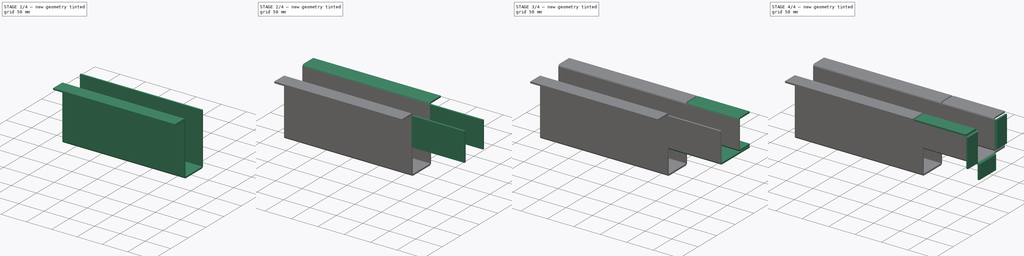
[diagram: build sequence overview — one tinted view per stage of 4, left to right]
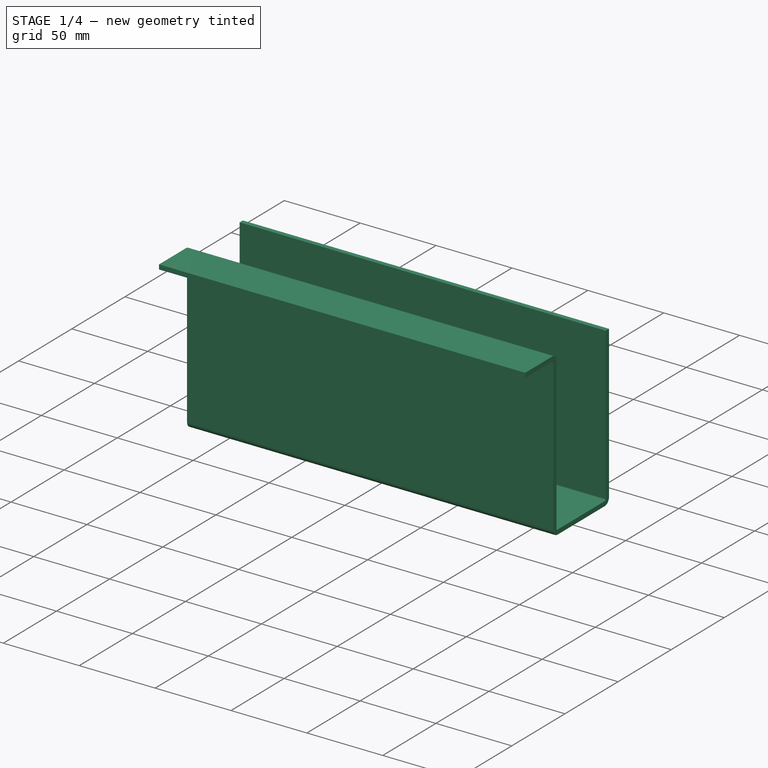
[diagram: stage 1 of 4 — iso view after this stage's code; geometry added in this stage tinted green]
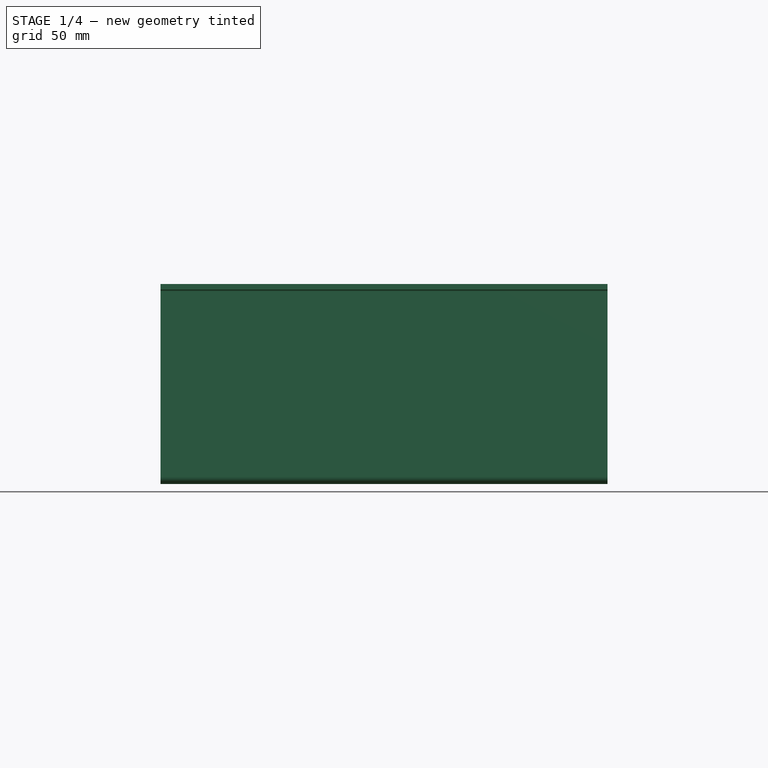
[diagram: stage 1 of 4 — front view after this stage's code; geometry added in this stage tinted green]
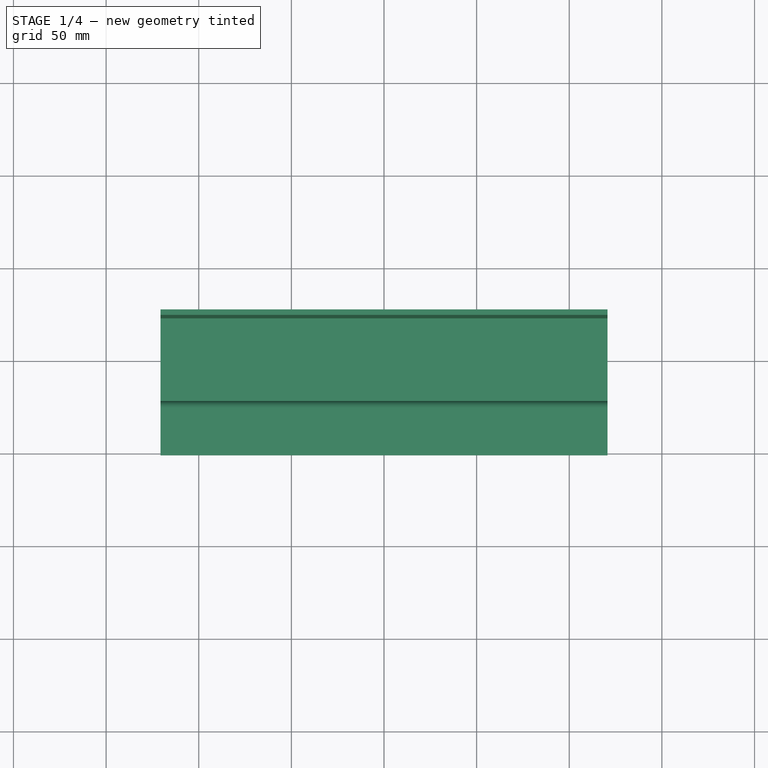
[diagram: stage 1 of 4 — top view after this stage's code; geometry added in this stage tinted green]
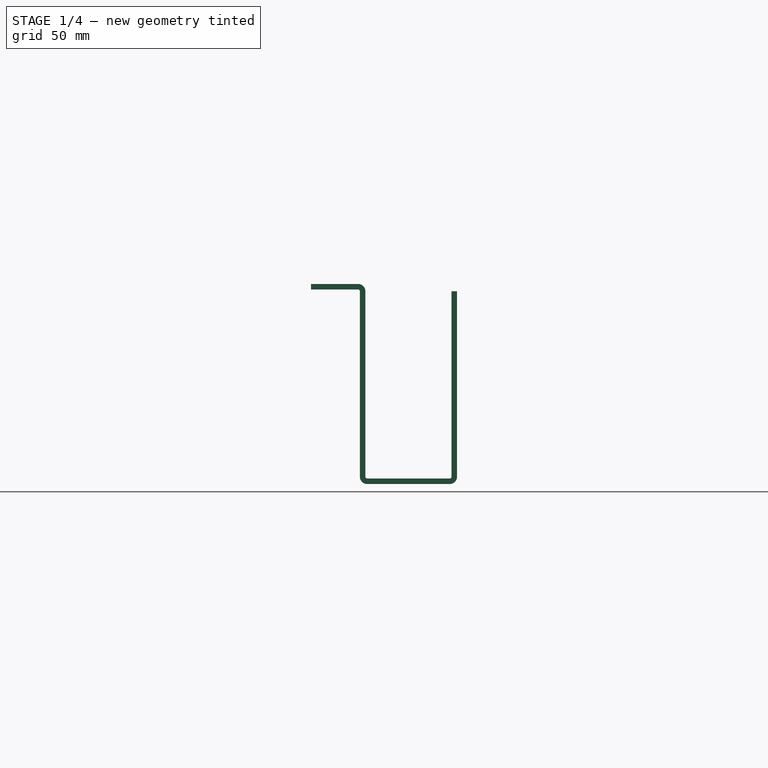
[diagram: stage 1 of 4 — right view after this stage's code; geometry added in this stage tinted green]
FCSTD DOCUMENT  (FreeCAD 0.18R4 (GitTag))
Label: top hat2
License: All rights reserved
LicenseURL: http://en.wikipedia.org/wiki/All_rights_reserved
objects: PartDesign::FeaturePython×13, Sketcher::SketchObject×4, PartDesign::Pad×1, PartDesign::Body×1, App::Part×1, Part::Feature×1
note: 21 computed .brp shape members not serialized (recipe doc carries the construction recipe); baked Part::Feature solids carry a one-line shape summary decoded from their .brp

FEATURE [Sketcher::SketchObject] Sketch
  MapMode = 5
  Support = -> [XY_Plane001]
  sketch-geometry (4):
    g0: LineSegment StartX=-120.65 StartY=22.225 StartZ=0 EndX=120.65 EndY=22.225 EndZ=0
    g1: LineSegment StartX=120.65 StartY=22.225 StartZ=0 EndX=120.65 EndY=-22.225 EndZ=0
    g2: LineSegment StartX=120.65 StartY=-22.225 StartZ=0 EndX=-120.65 EndY=-22.225 EndZ=0
    g3: LineSegment StartX=-120.65 StartY=-22.225 StartZ=0 EndX=-120.65 EndY=22.225 EndZ=0
  constraints (12):
    c: Coincident(g0,g1)
    c: Coincident(g1,g2)
    c: Coincident(g2,g3)
    c: Coincident(g3,g0)
    c: Horizontal(g0)
    c: Horizontal(g2)
    c: Vertical(g1)
    c: Vertical(g3)
    c: DistanceX(g0,g0) = 241.3
    c: DistanceY(g3,g3) = 44.45
    c: DistanceY(g0,g-1) = -22.225
    c: DistanceX(g-1,g0) = -120.65
FEATURE [PartDesign::Pad] Pad
  Length = 3
  Length2 = 100
  Profile = -> Sketch
  Type = 0
FEATURE [PartDesign::FeaturePython] Bend  label="LHS"  # WARN: FeaturePython — macro-defined, semantics opaque (R4)
  AutoMiter = true
  BaseFeature = -> Pad
  BendType = 0
  LengthList = [100.012]
  ReliefFactor = 0.7
  UseReliefFactor = false
  angle = 90
  baseObject = -> Pad [Face3]
  bendAList = [90]
  extend1 = 0
  extend2 = 0
  gap1 = 0
  gap2 = 0
  invert = false
  kfactor = 0.5
  length = 100.012
  miterangle1 = 0
  miterangle2 = 0
  offset = 0
  radius = 1
  reliefType = 0
  reliefd = 1
  reliefw = 0.8
  sketchflip = false
  sketchinvert = false
  unfold = false
FEATURE [PartDesign::FeaturePython] Bend001  label="LHS top flange"  # WARN: FeaturePython — macro-defined, semantics opaque (R4)
  AutoMiter = true
  BaseFeature = -> Bend
  BendType = 0
  LengthList = [25.4]
  ReliefFactor = 0.7
  UseReliefFactor = false
  angle = -90
  baseObject = -> Bend [Face3]
  bendAList = [-90]
  extend1 = 0
  extend2 = 0
  gap1 = 0
  gap2 = 0
  invert = false
  kfactor = 0.5
  length = 25.4
  miterangle1 = 0
  miterangle2 = 0
  offset = 0
  radius = 1
  reliefType = 0
  reliefd = 1
  reliefw = 0.8
  sketchflip = false
  sketchinvert = false
  unfold = false
FEATURE [PartDesign::FeaturePython] Bend002  label="RHS"  # WARN: FeaturePython — macro-defined, semantics opaque (R4)
  AutoMiter = true
  BaseFeature = -> Bend001
  BendType = 0
  LengthList = [100.1]
  ReliefFactor = 0.7
  UseReliefFactor = false
  angle = 90
  baseObject = -> Bend001 [Face21]
  bendAList = [90]
  extend1 = 0
  extend2 = 0
  gap1 = 0
  gap2 = 0
  invert = false
  kfactor = 0.5
  length = 100.1
  miterangle1 = 0
  miterangle2 = 0
  offset = 0
  radius = 1
  reliefType = 0
  reliefd = 1
  reliefw = 0.8
  sketchflip = false
  sketchinvert = false
  unfold = false
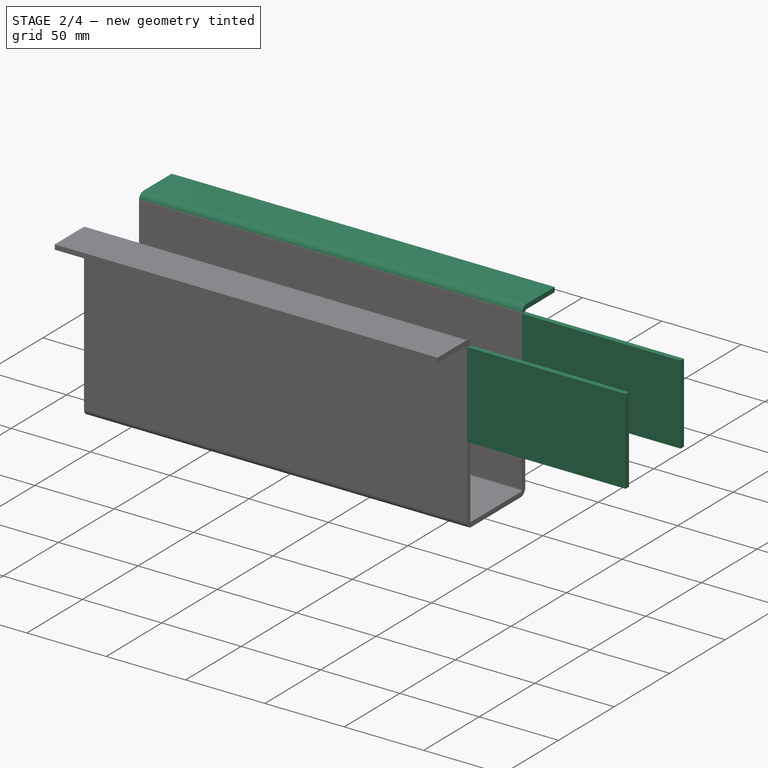
[diagram: stage 2 of 4 — iso view after this stage's code; geometry added in this stage tinted green]
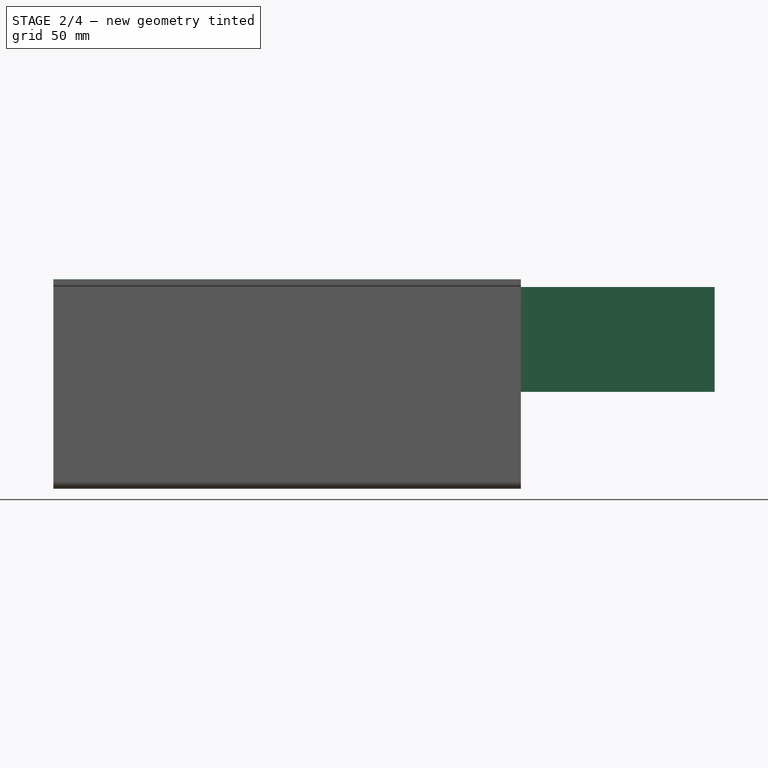
[diagram: stage 2 of 4 — front view after this stage's code; geometry added in this stage tinted green]
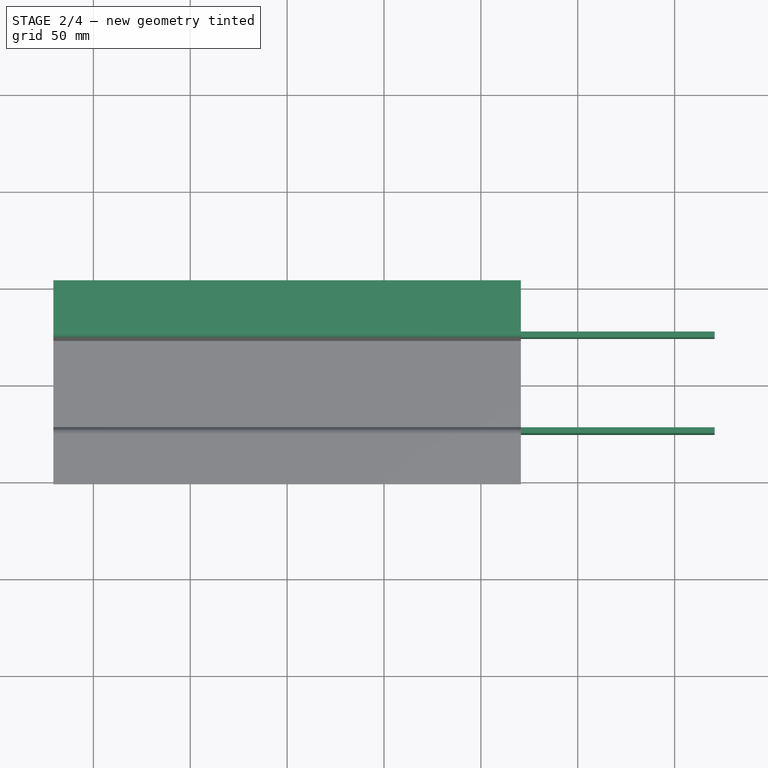
[diagram: stage 2 of 4 — top view after this stage's code; geometry added in this stage tinted green]
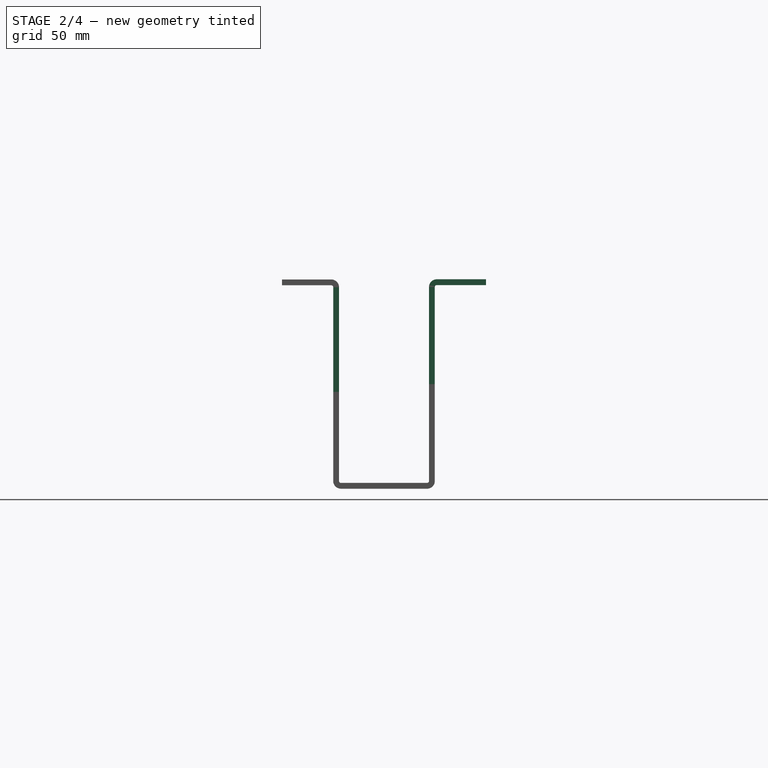
[diagram: stage 2 of 4 — right view after this stage's code; geometry added in this stage tinted green]
FEATURE [PartDesign::FeaturePython] Bend003  label="RHS top flange"  # WARN: FeaturePython — macro-defined, semantics opaque (R4)
  AutoMiter = true
  BaseFeature = -> Bend002
  BendType = 0
  LengthList = [25.4]
  ReliefFactor = 0.7
  UseReliefFactor = false
  angle = -90
  baseObject = -> Bend002 [Face3]
  bendAList = [-90]
  extend1 = 0
  extend2 = 0
  gap1 = 0
  gap2 = 0
  invert = false
  kfactor = 0.5
  length = 25.4
  miterangle1 = 0
  miterangle2 = 0
  offset = 0
  radius = 1
  reliefType = 0
  reliefd = 1
  reliefw = 0.8
  sketchflip = false
  sketchinvert = false
  unfold = false
FEATURE [PartDesign::FeaturePython] Extend  label="RHS extend"  # WARN: FeaturePython — macro-defined, semantics opaque (R4)
  BaseFeature = -> Bend003
  baseObject = -> Bend003 [Face14]
  gap1 = 0
  gap2 = 50
  length = 100
FEATURE [PartDesign::FeaturePython] Extend001  label="LHS extend"  # WARN: FeaturePython — macro-defined, semantics opaque (R4)
  BaseFeature = -> Extend
  baseObject = -> Extend [Face33]
  gap1 = 46
  gap2 = 0
  length = 100
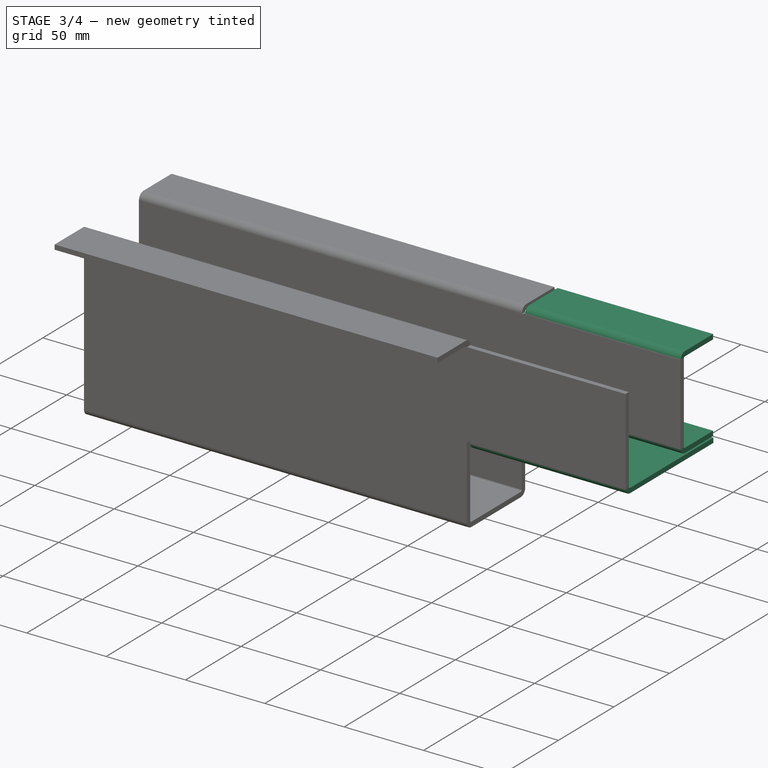
[diagram: stage 3 of 4 — iso view after this stage's code; geometry added in this stage tinted green]
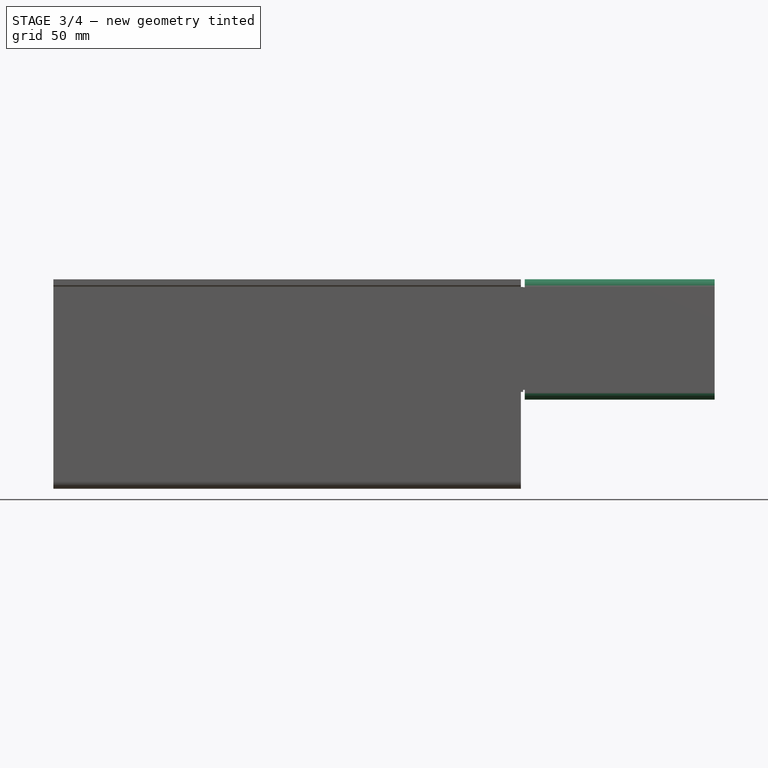
[diagram: stage 3 of 4 — front view after this stage's code; geometry added in this stage tinted green]
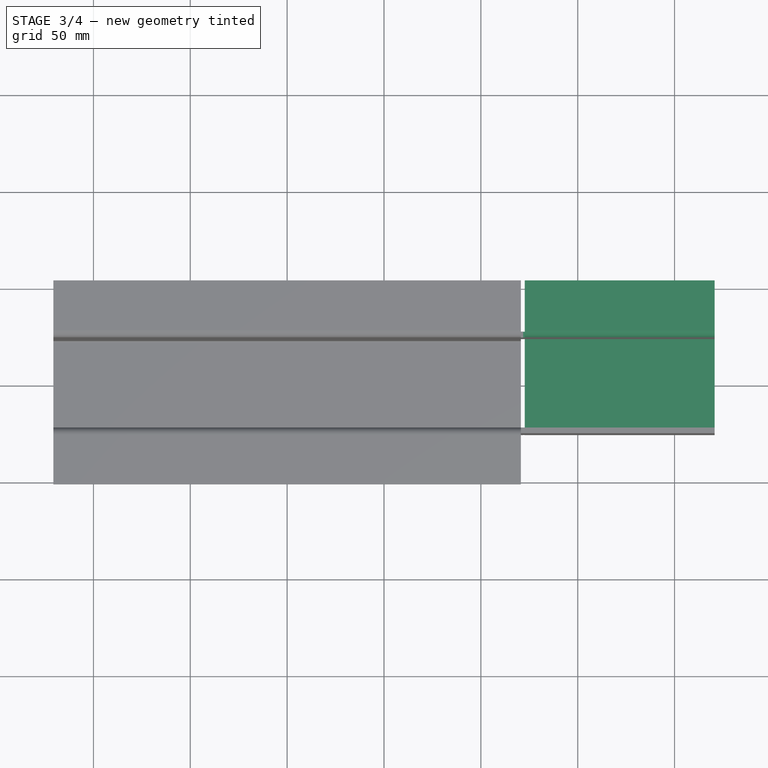
[diagram: stage 3 of 4 — top view after this stage's code; geometry added in this stage tinted green]
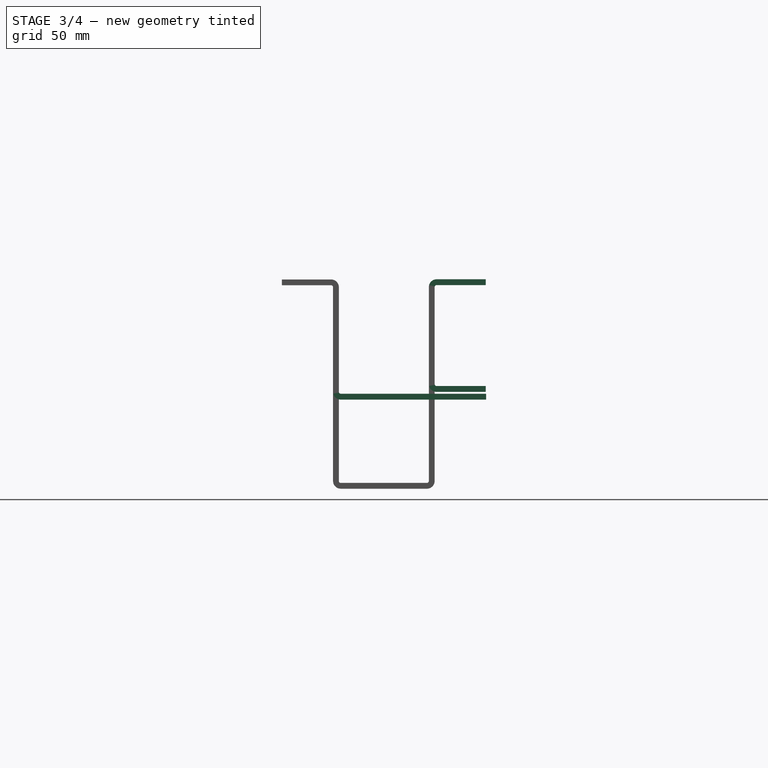
[diagram: stage 3 of 4 — right view after this stage's code; geometry added in this stage tinted green]
FEATURE [PartDesign::FeaturePython] Bend004  label="RHS extend bottom flange"  # WARN: FeaturePython — macro-defined, semantics opaque (R4)
  AutoMiter = true
  BaseFeature = -> Extend001
  BendType = 0
  LengthList = [25.4]
  ReliefFactor = 0.7
  UseReliefFactor = false
  angle = -90
  baseObject = -> Extend001 [Face34]
  bendAList = [-90]
  extend1 = 0
  extend2 = 0
  gap1 = 0
  gap2 = 2
  invert = false
  kfactor = 0.5
  length = 25.4
  miterangle1 = 0
  miterangle2 = 0
  offset = 0
  radius = 1
  reliefType = 0
  reliefd = 1
  reliefw = 0.8
  sketchflip = false
  sketchinvert = false
  unfold = false
FEATURE [PartDesign::FeaturePython] Bend005  label="RHS extend top flange"  # WARN: FeaturePython — macro-defined, semantics opaque (R4)
  AutoMiter = true
  BaseFeature = -> Bend004
  BendType = 0
  LengthList = [25.4]
  ReliefFactor = 0.7
  UseReliefFactor = false
  angle = -90
  baseObject = -> Bend004 [Face13]
  bendAList = [-90]
  extend1 = 0
  extend2 = 0
  gap1 = 2
  gap2 = 0
  invert = false
  kfactor = 0.5
  length = 25.4
  miterangle1 = 0
  miterangle2 = 0
  offset = 0
  radius = 1
  reliefType = 0
  reliefd = 1
  reliefw = 0.8
  sketchflip = false
  sketchinvert = false
  unfold = false
FEATURE [PartDesign::FeaturePython] Bend006  label="LHS extend bottom flange"  # WARN: FeaturePython — macro-defined, semantics opaque (R4)
  AutoMiter = true
  BaseFeature = -> Bend005
  BendType = 0
  LengthList = [75]
  ReliefFactor = 0.7
  UseReliefFactor = false
  angle = 90
  baseObject = -> Bend005 [Face63]
  bendAList = [90]
  extend1 = 0
  extend2 = 0
  gap1 = 2
  gap2 = 0
  invert = false
  kfactor = 0.5
  length = 75
  miterangle1 = 0
  miterangle2 = 0
  offset = 0
  radius = 1
  reliefType = 0
  reliefd = 1
  reliefw = 0.8
  sketchflip = false
  sketchinvert = false
  unfold = false
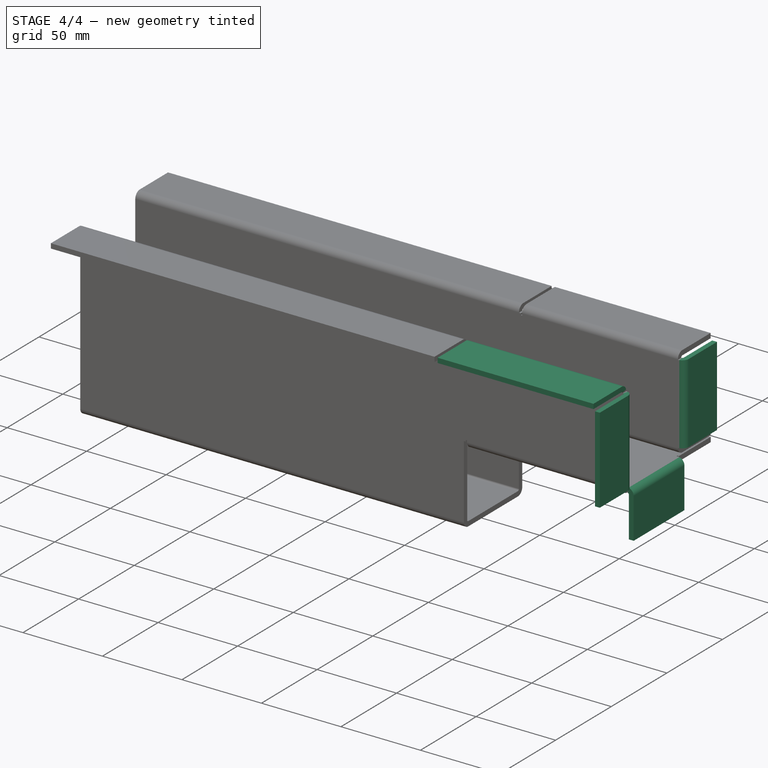
[diagram: stage 4 of 4 — iso view after this stage's code; geometry added in this stage tinted green]
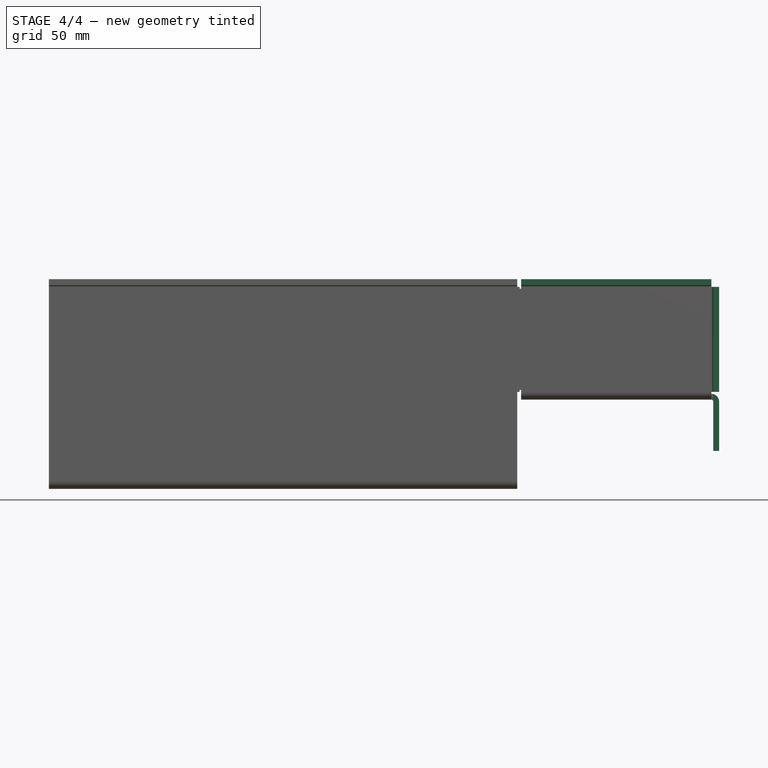
[diagram: stage 4 of 4 — front view after this stage's code; geometry added in this stage tinted green]
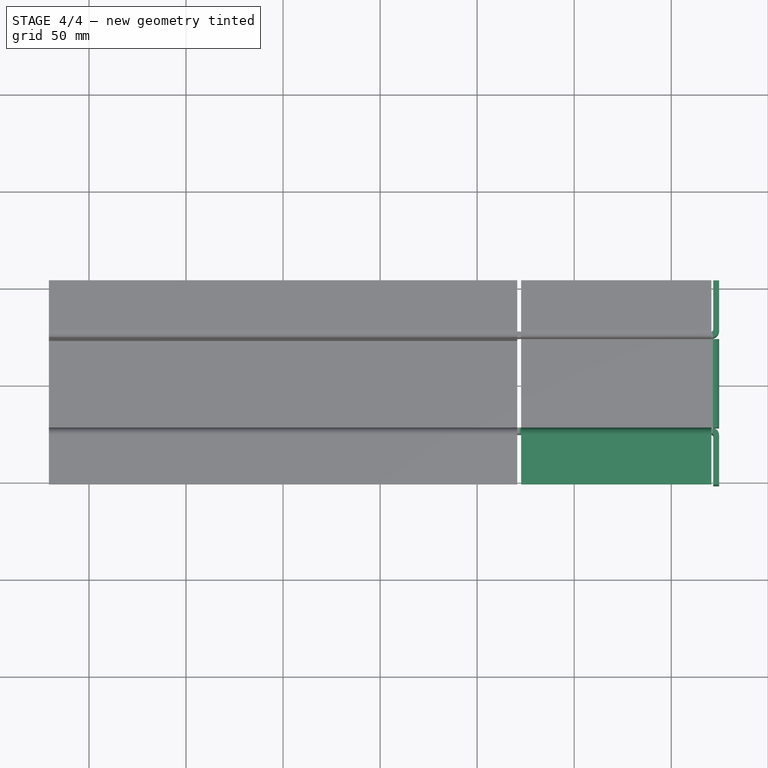
[diagram: stage 4 of 4 — top view after this stage's code; geometry added in this stage tinted green]
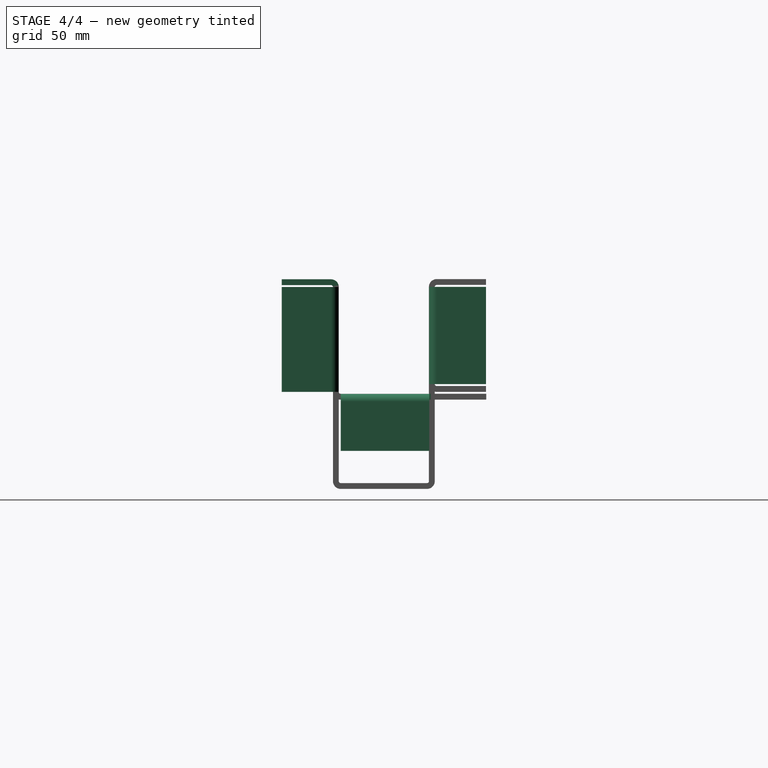
[diagram: stage 4 of 4 — right view after this stage's code; geometry added in this stage tinted green]
FEATURE [PartDesign::FeaturePython] Bend007  label="LHS extend top flange"  # WARN: FeaturePython — macro-defined, semantics opaque (R4)
  AutoMiter = true
  BaseFeature = -> Bend006
  BendType = 0
  LengthList = [25.4]
  ReliefFactor = 0.7
  UseReliefFactor = false
  angle = -90
  baseObject = -> Bend006 [Face16]
  bendAList = [-90]
  extend1 = 0
  extend2 = 0
  gap1 = 0
  gap2 = 2
  invert = false
  kfactor = 0.5
  length = 25.4
  miterangle1 = 0
  miterangle2 = 0
  offset = 0
  radius = 1
  reliefType = 0
  reliefd = 1
  reliefw = 0.8
  sketchflip = false
  sketchinvert = false
  unfold = false
FEATURE [PartDesign::FeaturePython] Bend008  label="LHS weld tab"  # WARN: FeaturePython — macro-defined, semantics opaque (R4)
  AutoMiter = true
  BaseFeature = -> Bend007
  BendType = 0
  LengthList = [25.4]
  ReliefFactor = 0.7
  UseReliefFactor = false
  angle = -90
  baseObject = -> Bend007 [Face8]
  bendAList = [-90]
  extend1 = 0
  extend2 = 0
  gap1 = 0
  gap2 = 0
  invert = false
  kfactor = 0.5
  length = 25.4
  miterangle1 = 0
  miterangle2 = 0
  offset = 0
  radius = 1
  reliefType = 0
  reliefd = 1
  reliefw = 0.8
  sketchflip = false
  sketchinvert = false
  unfold = false
FEATURE [PartDesign::FeaturePython] Bend009  label="RHS weld tab"  # WARN: FeaturePython — macro-defined, semantics opaque (R4)
  AutoMiter = true
  BaseFeature = -> Bend008
  BendType = 0
  LengthList = [25.4]
  ReliefFactor = 0.7
  UseReliefFactor = false
  angle = -90
  baseObject = -> Bend008 [Face79]
  bendAList = [-90]
  extend1 = 0
  extend2 = 0
  gap1 = 0
  gap2 = 0
  invert = false
  kfactor = 0.5
  length = 25.4
  miterangle1 = 0
  miterangle2 = 0
  offset = 0
  radius = 1
  reliefType = 0
  reliefd = 1
  reliefw = 0.8
  sketchflip = false
  sketchinvert = false
  unfold = false
FEATURE [PartDesign::FeaturePython] Bend010  label="bottom weld tab"  # WARN: FeaturePython — macro-defined, semantics opaque (R4)
  AutoMiter = true
  BaseFeature = -> Bend009
  BendType = 0
  LengthList = [25.4]
  ReliefFactor = 0.7
  UseReliefFactor = false
  angle = -90
  baseObject = -> Bend009 [Face110]
  bendAList = [-90]
  extend1 = 0
  extend2 = 0
  gap1 = 29.4
  gap2 = 0
  invert = false
  kfactor = 0.5
  length = 25.4
  miterangle1 = 0
  miterangle2 = 0
  offset = 0
  radius = 1
  reliefType = 0
  reliefd = 1
  reliefw = 0.8
  sketchflip = false
  sketchinvert = false
  unfold = false
FEATURE [PartDesign::Body] Body  label="Body_material_0.50ansi"
  Group = -> [Sketch,Pad,Bend,Bend001,Bend002,Bend003,Extend,Extend001,Bend004,Bend005,Bend006,Bend007,Bend008,Bend009,Bend010]
  Origin = -> Origin001
  Tip = -> Bend010
FEATURE [App::Part] Part  label="top hat"
  Group = -> [Body]
  Origin = -> Origin
FEATURE [Part::Feature] Unfold
  shape: bbox 370.6 x 311.1 x 3 mm, 44 faces (baked)
FEATURE [Sketcher::SketchObject] Sketch001  label="Unfold_Sketch"
  sketch-geometry (42):
    g0: LineSegment StartX=122.65 StartY=155.579 StartZ=0 EndX=220.65 EndY=155.579 EndZ=0
    g1: LineSegment StartX=249.977 StartY=126.252 StartZ=0 EndX=249.977 EndY=76.152 EndZ=0
    g2: LineSegment StartX=220.65 StartY=46.825 StartZ=0 EndX=122.65 EndY=46.825 EndZ=0
    g3: LineSegment StartX=121.85 StartY=76.152 StartZ=0 EndX=120.65 EndY=76.152 EndZ=0
    g4: LineSegment StartX=121.85 StartY=76.152 StartZ=0 EndX=121.85 EndY=77.152 EndZ=0
    g5: LineSegment StartX=121.85 StartY=77.152 StartZ=0 EndX=122.65 EndY=77.152 EndZ=0
    g6: LineSegment StartX=122.65 StartY=-73.152 StartZ=0 EndX=121.85 EndY=-73.152 EndZ=0
    g7: LineSegment StartX=121.85 StartY=-73.152 StartZ=0 EndX=121.85 EndY=-72.152 EndZ=0
    g8: LineSegment StartX=120.65 StartY=-72.152 StartZ=0 EndX=121.85 EndY=-72.152 EndZ=0
    g9: LineSegment StartX=219.65 StartY=-22.625 StartZ=0 EndX=219.65 EndY=-21.825 EndZ=0
    g10: LineSegment StartX=219.65 StartY=-21.825 StartZ=0 EndX=220.65 EndY=-21.825 EndZ=0
    g11: LineSegment StartX=220.65 StartY=6.775 StartZ=0 EndX=220.65 EndY=-21.825 EndZ=0
    g12: LineSegment StartX=122.65 StartY=6.775 StartZ=0 EndX=220.65 EndY=6.775 EndZ=0
    g13: LineSegment StartX=249.977 StartY=-22.625 StartZ=0 EndX=249.977 EndY=-68.225 EndZ=0
    g14: LineSegment StartX=220.65 StartY=-68.225 StartZ=0 EndX=220.65 EndY=-72.152 EndZ=0
    g15: LineSegment StartX=249.977 StartY=-72.152 StartZ=0 EndX=249.977 EndY=-126.164 EndZ=0
    g16: LineSegment StartX=220.65 StartY=-155.491 StartZ=0 EndX=122.65 EndY=-155.491 EndZ=0
    g17: LineSegment StartX=121.85 StartY=-126.164 StartZ=0 EndX=120.65 EndY=-126.164 EndZ=0
    g18: LineSegment StartX=121.85 StartY=-126.164 StartZ=0 EndX=121.85 EndY=-125.164 EndZ=0
    g19: LineSegment StartX=121.85 StartY=-125.164 StartZ=0 EndX=122.65 EndY=-125.164 EndZ=0
    g20: LineSegment StartX=120.65 StartY=-155.491 StartZ=0 EndX=-120.65 EndY=-155.491 EndZ=0
    g21: LineSegment StartX=-120.65 StartY=155.579 StartZ=0 EndX=120.65 EndY=155.579 EndZ=0
    g22: LineSegment StartX=122.65 StartY=125.252 StartZ=0 EndX=121.85 EndY=125.252 EndZ=0
    g23: LineSegment StartX=121.85 StartY=125.252 StartZ=0 EndX=121.85 EndY=126.252 EndZ=0
    g24: LineSegment StartX=120.65 StartY=126.252 StartZ=0 EndX=121.85 EndY=126.252 EndZ=0
    g25: LineSegment StartX=122.65 StartY=155.579 StartZ=0 EndX=122.65 EndY=125.252 EndZ=0
    g26: LineSegment StartX=122.65 StartY=46.825 StartZ=0 EndX=122.65 EndY=77.152 EndZ=0
    g27: LineSegment StartX=122.65 StartY=6.775 StartZ=0 EndX=122.65 EndY=-73.152 EndZ=0
    g28: LineSegment StartX=122.65 StartY=-155.491 StartZ=0 EndX=122.65 EndY=-125.164 EndZ=0
    g29: LineSegment StartX=120.65 StartY=155.579 StartZ=0 EndX=120.65 EndY=126.252 EndZ=0
    g30: LineSegment StartX=-120.65 StartY=-155.491 StartZ=0 EndX=-120.65 EndY=155.579 EndZ=0
    g31: LineSegment StartX=120.65 StartY=-126.164 StartZ=0 EndX=120.65 EndY=-155.491 EndZ=0
    g32: LineSegment StartX=220.65 StartY=-126.164 StartZ=0 EndX=220.65 EndY=-155.491 EndZ=0
    g33: LineSegment StartX=249.977 StartY=-126.164 StartZ=0 EndX=220.65 EndY=-126.164 EndZ=0
    g34: LineSegment StartX=220.65 StartY=-72.152 StartZ=0 EndX=249.977 EndY=-72.152 EndZ=0
    g35: LineSegment StartX=249.977 StartY=-68.225 StartZ=0 EndX=220.65 EndY=-68.225 EndZ=0
    g36: LineSegment StartX=219.65 StartY=-22.625 StartZ=0 EndX=249.977 EndY=-22.625 EndZ=0
    g37: LineSegment StartX=120.65 StartY=76.152 StartZ=0 EndX=120.65 EndY=-72.152 EndZ=0
    g38: LineSegment StartX=220.65 StartY=76.152 StartZ=0 EndX=220.65 EndY=46.825 EndZ=0
    g39: LineSegment StartX=249.977 StartY=76.152 StartZ=0 EndX=220.65 EndY=76.152 EndZ=0
    g40: LineSegment StartX=220.65 StartY=126.252 StartZ=0 EndX=249.977 EndY=126.252 EndZ=0
    g41: LineSegment StartX=220.65 StartY=155.579 StartZ=0 EndX=220.65 EndY=126.252 EndZ=0
FEATURE [Sketcher::SketchObject] Sketch002  label="Unfold_Sketch_Outline"
  sketch-geometry (42):
    g0: LineSegment StartX=122.65 StartY=155.579 StartZ=0 EndX=122.65 EndY=125.252 EndZ=0
    g1: LineSegment StartX=122.65 StartY=155.579 StartZ=0 EndX=220.65 EndY=155.579 EndZ=0
    g2: LineSegment StartX=220.65 StartY=155.579 StartZ=0 EndX=220.65 EndY=126.252 EndZ=0
    g3: LineSegment StartX=220.65 StartY=126.252 StartZ=0 EndX=249.977 EndY=126.252 EndZ=0
    g4: LineSegment StartX=249.977 StartY=126.252 StartZ=0 EndX=249.977 EndY=76.152 EndZ=0
    g5: LineSegment StartX=249.977 StartY=76.152 StartZ=0 EndX=220.65 EndY=76.152 EndZ=0
    g6: LineSegment StartX=220.65 StartY=76.152 StartZ=0 EndX=220.65 EndY=46.825 EndZ=0
    g7: LineSegment StartX=220.65 StartY=46.825 StartZ=0 EndX=122.65 EndY=46.825 EndZ=0
    g8: LineSegment StartX=122.65 StartY=46.825 StartZ=0 EndX=122.65 EndY=77.152 EndZ=0
    g9: LineSegment StartX=121.85 StartY=77.152 StartZ=0 EndX=122.65 EndY=77.152 EndZ=0
    g10: LineSegment StartX=121.85 StartY=76.152 StartZ=0 EndX=121.85 EndY=77.152 EndZ=0
    g11: LineSegment StartX=121.85 StartY=76.152 StartZ=0 EndX=120.65 EndY=76.152 EndZ=0
    g12: LineSegment StartX=120.65 StartY=76.152 StartZ=0 EndX=120.65 EndY=-72.152 EndZ=0
    g13: LineSegment StartX=120.65 StartY=-72.152 StartZ=0 EndX=121.85 EndY=-72.152 EndZ=0
    g14: LineSegment StartX=121.85 StartY=-73.152 StartZ=0 EndX=121.85 EndY=-72.152 EndZ=0
    g15: LineSegment StartX=122.65 StartY=-73.152 StartZ=0 EndX=121.85 EndY=-73.152 EndZ=0
    g16: LineSegment StartX=122.65 StartY=6.775 StartZ=0 EndX=122.65 EndY=-73.152 EndZ=0
    g17: LineSegment StartX=122.65 StartY=6.775 StartZ=0 EndX=220.65 EndY=6.775 EndZ=0
    g18: LineSegment StartX=220.65 StartY=6.775 StartZ=0 EndX=220.65 EndY=-21.825 EndZ=0
    g19: LineSegment StartX=219.65 StartY=-21.825 StartZ=0 EndX=220.65 EndY=-21.825 EndZ=0
    g20: LineSegment StartX=219.65 StartY=-22.625 StartZ=0 EndX=219.65 EndY=-21.825 EndZ=0
    g21: LineSegment StartX=219.65 StartY=-22.625 StartZ=0 EndX=249.977 EndY=-22.625 EndZ=0
    g22: LineSegment StartX=249.977 StartY=-22.625 StartZ=0 EndX=249.977 EndY=-68.225 EndZ=0
    g23: LineSegment StartX=249.977 StartY=-68.225 StartZ=0 EndX=220.65 EndY=-68.225 EndZ=0
    g24: LineSegment StartX=220.65 StartY=-68.225 StartZ=0 EndX=220.65 EndY=-72.152 EndZ=0
    g25: LineSegment StartX=220.65 StartY=-72.152 StartZ=0 EndX=249.977 EndY=-72.152 EndZ=0
    g26: LineSegment StartX=249.977 StartY=-72.152 StartZ=0 EndX=249.977 EndY=-126.164 EndZ=0
    g27: LineSegment StartX=249.977 StartY=-126.164 StartZ=0 EndX=220.65 EndY=-126.164 EndZ=0
    g28: LineSegment StartX=220.65 StartY=-126.164 StartZ=0 EndX=220.65 EndY=-155.491 EndZ=0
    g29: LineSegment StartX=220.65 StartY=-155.491 StartZ=0 EndX=122.65 EndY=-155.491 EndZ=0
    g30: LineSegment StartX=122.65 StartY=-155.491 StartZ=0 EndX=122.65 EndY=-125.164 EndZ=0
    g31: LineSegment StartX=121.85 StartY=-125.164 StartZ=0 EndX=122.65 EndY=-125.164 EndZ=0
    g32: LineSegment StartX=121.85 StartY=-126.164 StartZ=0 EndX=121.85 EndY=-125.164 EndZ=0
    g33: LineSegment StartX=121.85 StartY=-126.164 StartZ=0 EndX=120.65 EndY=-126.164 EndZ=0
    g34: LineSegment StartX=120.65 StartY=-126.164 StartZ=0 EndX=120.65 EndY=-155.491 EndZ=0
    g35: LineSegment StartX=120.65 StartY=-155.491 StartZ=0 EndX=-120.65 EndY=-155.491 EndZ=0
    g36: LineSegment StartX=-120.65 StartY=-155.491 StartZ=0 EndX=-120.65 EndY=155.579 EndZ=0
    g37: LineSegment StartX=-120.65 StartY=155.579 StartZ=0 EndX=120.65 EndY=155.579 EndZ=0
    g38: LineSegment StartX=120.65 StartY=155.579 StartZ=0 EndX=120.65 EndY=126.252 EndZ=0
    g39: LineSegment StartX=120.65 StartY=126.252 StartZ=0 EndX=121.85 EndY=126.252 EndZ=0
    g40: LineSegment StartX=121.85 StartY=125.252 StartZ=0 EndX=121.85 EndY=126.252 EndZ=0
    g41: LineSegment StartX=122.65 StartY=125.252 StartZ=0 EndX=121.85 EndY=125.252 EndZ=0
FEATURE [Sketcher::SketchObject] Sketch003  label="Unfold_Sketch_bends"
  sketch-geometry (11):
    g0: LineSegment StartX=-120.65 StartY=128.215 StartZ=0 EndX=120.65 EndY=128.215 EndZ=0
    g1: LineSegment StartX=220.65 StartY=74.1885 StartZ=0 EndX=122.65 EndY=74.1885 EndZ=0
    g2: LineSegment StartX=222.613 StartY=126.252 StartZ=0 EndX=222.613 EndY=76.152 EndZ=0
    g3: LineSegment StartX=122.65 StartY=128.215 StartZ=0 EndX=220.65 EndY=128.215 EndZ=0
    g4: LineSegment StartX=-120.65 StartY=24.1885 StartZ=0 EndX=120.65 EndY=24.1885 EndZ=0
    g5: LineSegment StartX=220.65 StartY=-128.127 StartZ=0 EndX=122.65 EndY=-128.127 EndZ=0
    g6: LineSegment StartX=222.613 StartY=-72.152 StartZ=0 EndX=222.613 EndY=-126.164 EndZ=0
    g7: LineSegment StartX=222.613 StartY=-22.625 StartZ=0 EndX=222.613 EndY=-68.225 EndZ=0
    g8: LineSegment StartX=122.65 StartY=-70.1885 StartZ=0 EndX=220.65 EndY=-70.1885 EndZ=0
    g9: LineSegment StartX=120.65 StartY=-128.127 StartZ=0 EndX=-120.65 EndY=-128.127 EndZ=0
    g10: LineSegment StartX=120.65 StartY=-24.1885 StartZ=0 EndX=-120.65 EndY=-24.1885 EndZ=0
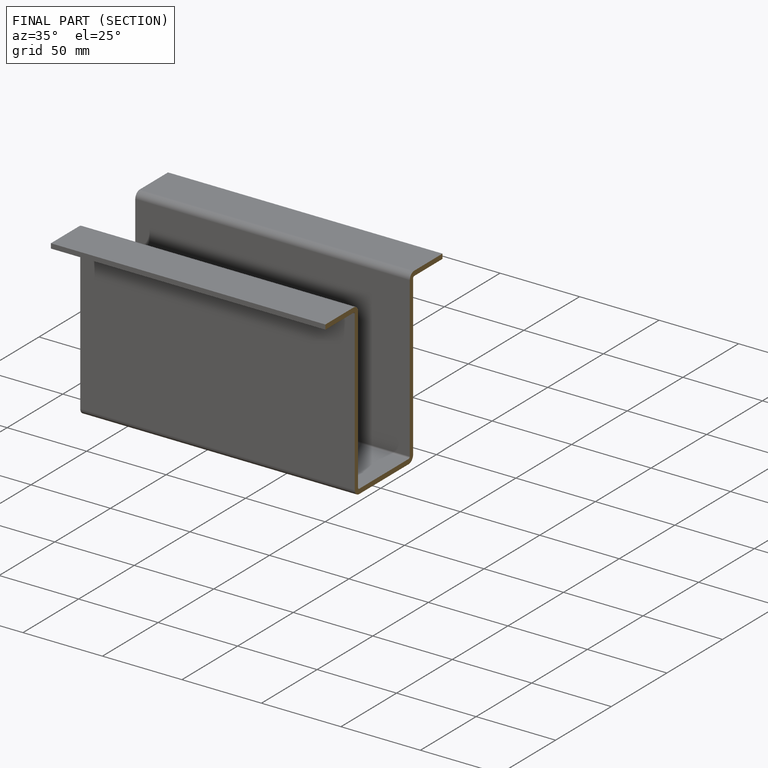
[diagram: finished part — half-section view (interior)]
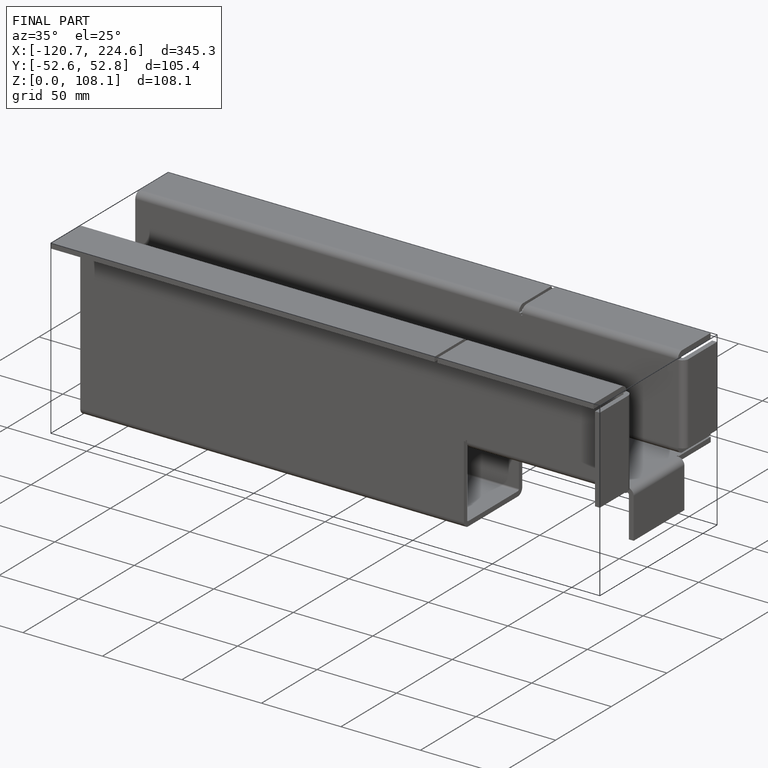
[diagram: finished part — iso view with bounding-box wireframe]
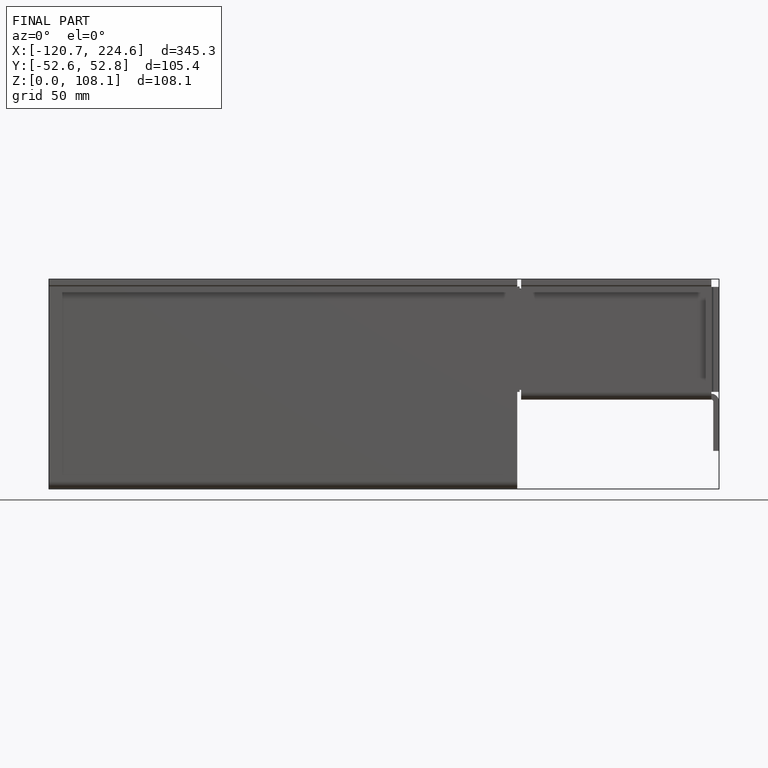
[diagram: finished part — front view with bounding-box wireframe]
